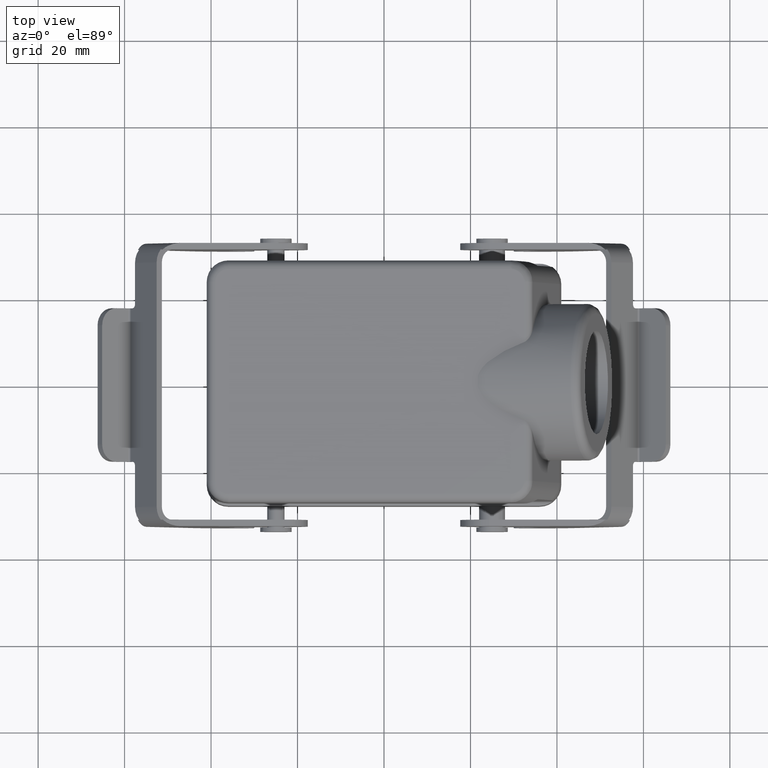
[diagram: clean part render]
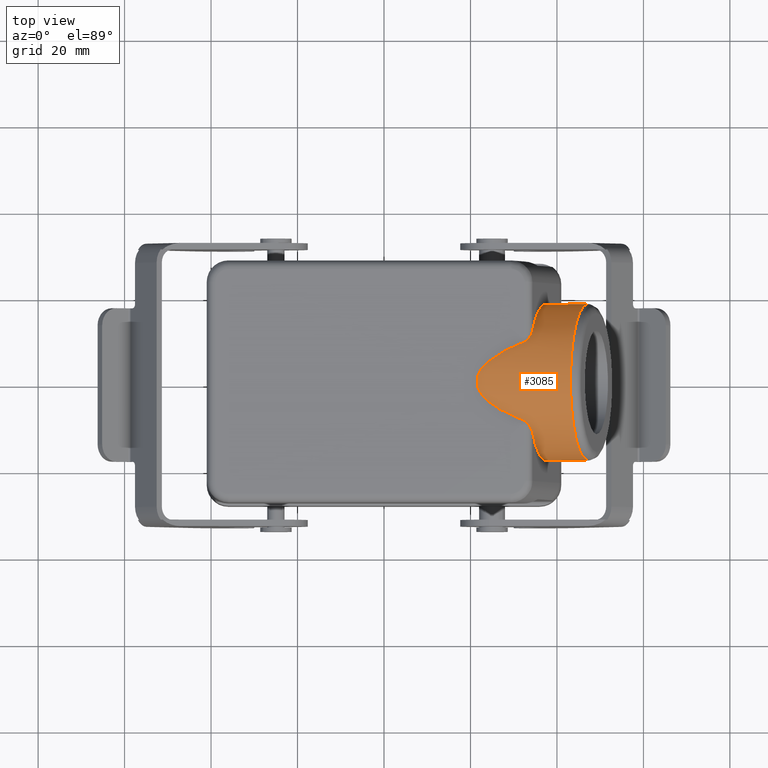
[diagram: same view with one face highlighted and labeled with its STEP entity id]
A machine part, top view. The second image highlights one B-rep face of the part: STEP entity #3085.
In plain terms, the highlighted cylindrical surface (partial cylindrical patch) has radius 18.1 mm, axis along (0.9747, 0, 0.2237).
Its self-contained STEP definition (entity closure, byte-faithful):
#119=CARTESIAN_POINT('',(2.168801162363E1,1.288228389599E0,5.95E1));
#120=CARTESIAN_POINT('',(2.187088981567E1,1.861547090214E0,5.95E1));
#121=CARTESIAN_POINT('',(2.241278845997E1,2.842182432631E0,5.95E1));
#122=CARTESIAN_POINT('',(2.385131970616E1,4.469140572507E0,5.95E1));
#123=CARTESIAN_POINT('',(2.607245438617E1,6.104217302983E0,5.95E1));
#124=CARTESIAN_POINT('',(2.909935040235E1,7.725587881590E0,5.95E1));
#125=CARTESIAN_POINT('',(3.128405445942E1,8.649329072419E0,5.95E1));
#126=CARTESIAN_POINT('',(3.240701833068E1,9.082350095276E0,5.95E1));
#128=CARTESIAN_POINT('',(3.240701833068E1,-9.082350095277E0,5.95E1));
#129=CARTESIAN_POINT('',(3.128405445942E1,-8.649329072420E0,5.95E1));
#130=CARTESIAN_POINT('',(2.909935040235E1,-7.725587881591E0,5.95E1));
#131=CARTESIAN_POINT('',(2.607245438617E1,-6.104217302984E0,5.95E1));
#132=CARTESIAN_POINT('',(2.385131970616E1,-4.469140572508E0,5.95E1));
#133=CARTESIAN_POINT('',(2.241278845997E1,-2.842182432631E0,5.95E1));
#134=CARTESIAN_POINT('',(2.187088981567E1,-1.861547090215E0,5.95E1));
#135=CARTESIAN_POINT('',(2.168801162363E1,-1.288228389599E0,5.95E1));
#145=CARTESIAN_POINT('',(3.240701833070E1,-9.082350095276E0,5.95E1));
#146=CARTESIAN_POINT('',(3.254797642020E1,-9.136704307067E0,5.95E1));
#147=CARTESIAN_POINT('',(3.282491159995E1,-9.291787332419E0,5.947044132977E1));
#148=CARTESIAN_POINT('',(3.321947545396E1,-9.640084832330E0,5.934301303803E1));
#149=CARTESIAN_POINT('',(3.358091153367E1,-1.007497790635E1,5.913743204282E1));
#150=CARTESIAN_POINT('',(3.390580629534E1,-1.058580696914E1,5.884915300688E1));
#151=CARTESIAN_POINT('',(3.418067785474E1,-1.116474424030E1,5.846770790632E1));
#152=CARTESIAN_POINT('',(3.431329267844E1,-1.159750594300E1,5.813493904392E1));
#153=CARTESIAN_POINT('',(3.435633790983E1,-1.182064501123E1,5.794738482144E1));
#155=CARTESIAN_POINT('',(3.742249388399E1,0.E0,4.458770521973E1));
#156=DIRECTION('',(9.746597895606E-1,0.E0,2.236924107201E-1));
#157=DIRECTION('',(-1.694008825514E-1,-6.530743100131E-1,7.381038453983E-1));
#158=AXIS2_PLACEMENT_3D('',#155,#156,#157);
#165=DIRECTION('',(-9.746597895610E-1,-1.275424210689E-13,-2.236924107181E-1));
#166=VECTOR('',#165,1.000000000001E1);
#167=CARTESIAN_POINT('',(4.716909177961E1,-1.81E1,4.682462932691E1));
#168=LINE('',#167,#166);
#169=CARTESIAN_POINT('',(2.168801162361E1,-1.288228389604E0,5.95E1));
#170=CARTESIAN_POINT('',(2.168801162361E1,-1.002224169350E0,5.95E1));
#171=CARTESIAN_POINT('',(2.168801162362E1,-4.300222202331E-1,5.95E1));
#172=CARTESIAN_POINT('',(2.168801162362E1,4.300226445623E-1,5.95E1));
#173=CARTESIAN_POINT('',(2.168801162361E1,1.002224351195E0,5.95E1));
#174=CARTESIAN_POINT('',(2.168801162361E1,1.288228389594E0,5.95E1));
#176=CARTESIAN_POINT('',(3.240701833070E1,9.082350095273E0,5.95E1));
#177=CARTESIAN_POINT('',(3.254989131895E1,9.137442702516E0,5.95E1));
#178=CARTESIAN_POINT('',(3.282474889294E1,9.291950938072E0,5.947044551007E1));
#179=CARTESIAN_POINT('',(3.322060397480E1,9.641066234946E0,5.934262739484E1));
#180=CARTESIAN_POINT('',(3.358178345116E1,1.007626952185E1,5.913674130597E1));
#181=CARTESIAN_POINT('',(3.390647280909E1,1.058693735367E1,5.884849879668E1));
#182=CARTESIAN_POINT('',(3.418124638095E1,1.116641509967E1,5.846645278992E1));
#183=CARTESIAN_POINT('',(3.431311988700E1,1.159661022192E1,5.813569192091E1));
#184=CARTESIAN_POINT('',(3.435633790983E1,1.182064501123E1,5.794738482144E1));
#186=DIRECTION('',(9.746597895609E-1,-1.275424210689E-13,2.236924107188E-1));
#187=VECTOR('',#186,1.000000000001E1);
#188=CARTESIAN_POINT('',(3.742249388400E1,1.81E1,4.458770521972E1));
#189=LINE('',#188,#187);
#207=CARTESIAN_POINT('',(3.742249388399E1,0.E0,4.458770521973E1));
#208=DIRECTION('',(9.746597895606E-1,0.E0,2.236924107201E-1));
#209=DIRECTION('',(1.695881004687E-13,1.E0,-7.388074191716E-13));
#210=AXIS2_PLACEMENT_3D('',#207,#208,#209);
#2098=CARTESIAN_POINT('',(4.716909177961E1,0.E0,4.682462932691E1));
#2099=DIRECTION('',(-9.746597895606E-1,0.E0,-2.236924107201E-1));
#2100=DIRECTION('',(-2.704773176457E-13,-1.E0,1.178872837286E-12));
#2101=AXIS2_PLACEMENT_3D('',#2098,#2099,#2100);
#2787=CARTESIAN_POINT('',(3.240701833070E1,-9.082350095276E0,5.95E1));
#2789=VERTEX_POINT('',#2787);
#2796=CARTESIAN_POINT('',(3.240701833070E1,9.082350095273E0,5.95E1));
#2797=VERTEX_POINT('',#2796);
#2798=VERTEX_POINT('',#119);
#2799=VERTEX_POINT('',#135);
#2800=CARTESIAN_POINT('',(3.435633790983E1,-1.182064501123E1,5.794738482144E1));
#2802=VERTEX_POINT('',#2800);
#2805=CARTESIAN_POINT('',(3.742249388400E1,1.81E1,4.458770521972E1));
#2807=VERTEX_POINT('',#2805);
#2812=CARTESIAN_POINT('',(3.435633790983E1,1.182064501123E1,5.794738482144E1));
#2813=VERTEX_POINT('',#2812);
#2814=CARTESIAN_POINT('',(3.742249388400E1,-1.81E1,4.458770521972E1));
#2815=VERTEX_POINT('',#2814);
#2820=CARTESIAN_POINT('',(4.716909177961E1,1.81E1,4.682462932691E1));
#2821=VERTEX_POINT('',#2820);
#2822=CARTESIAN_POINT('',(4.716909177961E1,-1.81E1,4.682462932691E1));
#2823=VERTEX_POINT('',#2822);
#3063=CARTESIAN_POINT('',(2.529772610186E1,0.E0,4.180497163037E1));
#3064=DIRECTION('',(9.746597895606E-1,0.E0,2.236924107201E-1));
#3065=DIRECTION('',(-8.980107697310E-14,1.E0,3.912761210948E-13));
#3066=AXIS2_PLACEMENT_3D('',#3063,#3064,#3065);
#3067=CYLINDRICAL_SURFACE('',#3066,1.81E1);
#3069=ORIENTED_EDGE('',*,*,#3068,.T.);
#3070=ORIENTED_EDGE('',*,*,#3051,.F.);
#3071=ORIENTED_EDGE('',*,*,#3041,.F.);
#3072=ORIENTED_EDGE('',*,*,#3026,.T.);
#3073=ORIENTED_EDGE('',*,*,#3024,.T.);
#3074=ORIENTED_EDGE('',*,*,#3022,.T.);
#3076=ORIENTED_EDGE('',*,*,#3075,.T.);
#3078=ORIENTED_EDGE('',*,*,#3077,.F.);
#3080=ORIENTED_EDGE('',*,*,#3079,.T.);
#3082=ORIENTED_EDGE('',*,*,#3081,.F.);
#3083=EDGE_LOOP('',(#3069,#3070,#3071,#3072,#3073,#3074,#3076,#3078,#3080,
#3082));
#3084=FACE_OUTER_BOUND('',#3083,.F.);
#3085=ADVANCED_FACE('',(#3084),#3067,.T.);
#127=B_SPLINE_CURVE_WITH_KNOTS('',3,(#119,#120,#121,#122,#123,#124,#125,#126),
.UNSPECIFIED.,.F.,.F.,(4,1,1,1,1,4),(0.E0,1.25E-1,2.5E-1,5.E-1,7.5E-1,1.E0),
.UNSPECIFIED.);
#136=B_SPLINE_CURVE_WITH_KNOTS('',3,(#128,#129,#130,#131,#132,#133,#134,#135),
.UNSPECIFIED.,.F.,.F.,(4,1,1,1,1,4),(0.E0,2.5E-1,5.E-1,7.5E-1,8.75E-1,1.E0),
.UNSPECIFIED.);
#154=B_SPLINE_CURVE_WITH_KNOTS('',3,(#145,#146,#147,#148,#149,#150,#151,#152,
#153),.UNSPECIFIED.,.F.,.F.,(4,1,1,1,1,1,4),(0.E0,1.666666666667E-1,
3.333333333333E-1,5.E-1,6.666666666667E-1,8.333333333333E-1,1.E0),
.UNSPECIFIED.);
#159=CIRCLE('',#158,1.81E1);
#175=B_SPLINE_CURVE_WITH_KNOTS('',3,(#169,#170,#171,#172,#173,#174),
.UNSPECIFIED.,.F.,.F.,(4,1,1,4),(0.E0,3.333333333333E-1,6.666666666667E-1,1.E0),
.UNSPECIFIED.);
#185=B_SPLINE_CURVE_WITH_KNOTS('',3,(#176,#177,#178,#179,#180,#181,#182,#183,
#184),.UNSPECIFIED.,.F.,.F.,(4,1,1,1,1,1,4),(0.E0,1.666666666667E-1,
3.333333333333E-1,5.E-1,6.666666666667E-1,8.333333333333E-1,1.E0),
.UNSPECIFIED.);
#211=CIRCLE('',#210,1.81E1);
#2102=CIRCLE('',#2101,1.81E1);
#3022=EDGE_CURVE('',#2798,#2797,#127,.T.);
#3024=EDGE_CURVE('',#2799,#2798,#175,.T.);
#3026=EDGE_CURVE('',#2789,#2799,#136,.T.);
#3041=EDGE_CURVE('',#2789,#2802,#154,.T.);
#3051=EDGE_CURVE('',#2802,#2815,#159,.T.);
#3068=EDGE_CURVE('',#2823,#2815,#168,.T.);
#3075=EDGE_CURVE('',#2797,#2813,#185,.T.);
#3077=EDGE_CURVE('',#2807,#2813,#211,.T.);
#3079=EDGE_CURVE('',#2807,#2821,#189,.T.);
#3081=EDGE_CURVE('',#2823,#2821,#2102,.T.);